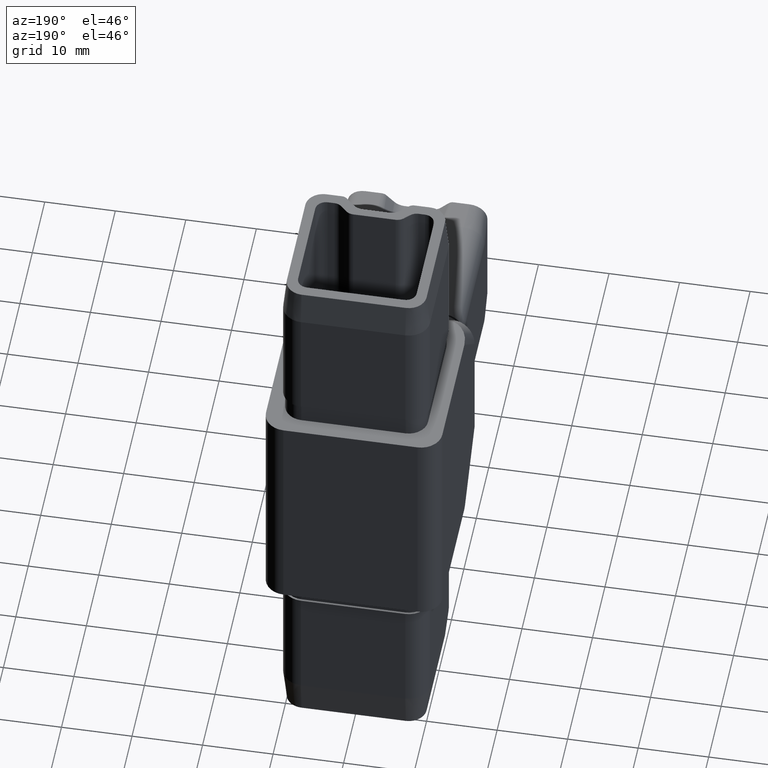
[diagram: clean part render]
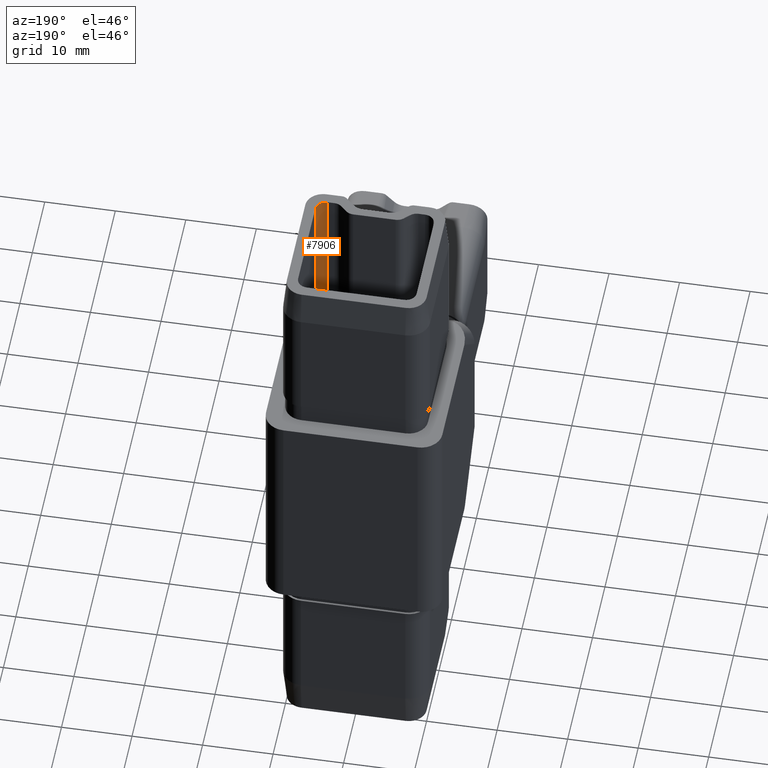
[diagram: same view with one face highlighted and labeled with its STEP entity id]
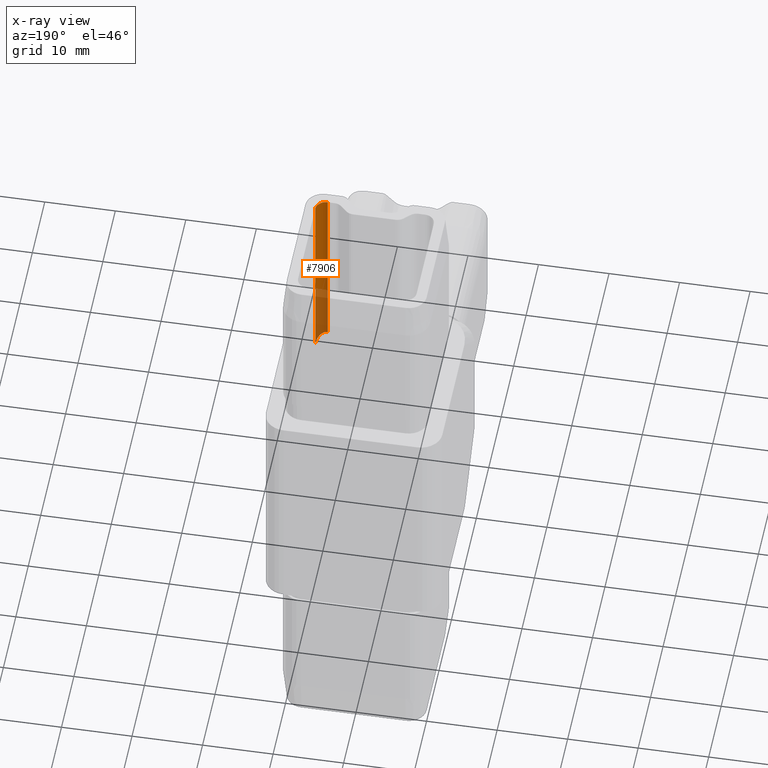
[diagram: x-ray of the same camera — body ghosted, the highlighted face saturated]
A machine part, auxiliary view. The second image highlights one B-rep face of the part: STEP entity #7906.
The next image is the same camera in x-ray: the body ghosted, the highlighted face saturated — about 35% of this face is hidden behind the body in this view.
In plain terms, the highlighted cylindrical surface (edge-blend (fillet) strip) has radius 1.5 mm, axis along (0, 0, -1).
Its self-contained STEP definition (entity closure, byte-faithful):
#42 = CARTESIAN_POINT ( 'NONE',  ( 6.900000000000000400, -6.399999999999988800, 15.42304473782996200 ) ) ;
#960 = DIRECTION ( 'NONE',  ( 1.000000000000000000, 0.0000000000000000000, 0.0000000000000000000 ) ) ;
#1199 = FACE_OUTER_BOUND ( 'NONE', #3055, .T. ) ;
#1207 = EDGE_CURVE ( 'NONE', #15559, #6300, #14901, .T. ) ;
#1227 = EDGE_CURVE ( 'NONE', #15559, #4066, #8203, .T. ) ;
#1689 = CARTESIAN_POINT ( 'NONE',  ( 8.400000000000000400, -4.899999999999989700, 41.50000000000000000 ) ) ;
#1830 = AXIS2_PLACEMENT_3D ( 'NONE', #13330, #16577, #19368 ) ;
#2387 = CARTESIAN_POINT ( 'NONE',  ( 6.900000000000000400, -6.399999999999988800, 41.50000000000000000 ) ) ;
#2860 = EDGE_CURVE ( 'NONE', #4066, #12033, #17517, .T. ) ;
#3055 = EDGE_LOOP ( 'NONE', ( #17964, #12889, #12207, #3698 ) ) ;
#3698 = ORIENTED_EDGE ( 'NONE', *, *, #2860, .F. ) ;
#4066 = VERTEX_POINT ( 'NONE', #1689 ) ;
#5480 = CARTESIAN_POINT ( 'NONE',  ( 6.900000000000000400, -6.399999999999988800, 41.50000000000000000 ) ) ;
#5674 = DIRECTION ( 'NONE',  ( 0.0000000000000000000, -0.0000000000000000000, -1.000000000000000000 ) ) ;
#6000 = LINE ( 'NONE', #2387, #6261 ) ;
#6261 = VECTOR ( 'NONE', #12953, 1000.000000000000000 ) ;
#6300 = VERTEX_POINT ( 'NONE', #6957 ) ;
#6688 = CYLINDRICAL_SURFACE ( 'NONE', #1830, 1.500000000000000400 ) ;
#6957 = CARTESIAN_POINT ( 'NONE',  ( 6.900000000000000400, -6.399999999999988800, 15.42304473782996200 ) ) ;
#7817 = CARTESIAN_POINT ( 'NONE',  ( 8.400000000000000400, -4.899999999999989700, 14.18040405071068500 ) ) ;
#7906 = ADVANCED_FACE ( 'NONE', ( #1199 ), #6688, .F. ) ;
#8203 = LINE ( 'NONE', #18115, #8644 ) ;
#8644 = VECTOR ( 'NONE', #19654, 1000.000000000000000 ) ;
#9976 = CARTESIAN_POINT ( 'NONE',  ( 6.900000000000000400, -4.899999999999989700, 41.50000000000000000 ) ) ;
#10636 = CARTESIAN_POINT ( 'NONE',  ( 8.399999999999998600, -5.778679656440347800, 14.90832611206853100 ) ) ;
#10910 = CARTESIAN_POINT ( 'NONE',  ( 7.778679656440355700, -6.399999999999987900, 15.42304473782995400 ) ) ;
#12033 = VERTEX_POINT ( 'NONE', #5480 ) ;
#12207 = ORIENTED_EDGE ( 'NONE', *, *, #17667, .F. ) ;
#12291 = AXIS2_PLACEMENT_3D ( 'NONE', #9976, #5674, #960 ) ;
#12889 = ORIENTED_EDGE ( 'NONE', *, *, #1207, .T. ) ;
#12953 = DIRECTION ( 'NONE',  ( 0.0000000000000000000, 0.0000000000000000000, -1.000000000000000000 ) ) ;
#13330 = CARTESIAN_POINT ( 'NONE',  ( 6.900000000000000400, -4.899999999999989700, 41.50000000000000000 ) ) ;
#14901 =( BOUNDED_CURVE ( )  B_SPLINE_CURVE ( 3, ( #7817, #10636, #10910, #42 ),
 .UNSPECIFIED., .F., .F. ) 
 B_SPLINE_CURVE_WITH_KNOTS ( ( 4, 4 ),
 ( 4.712388980384692300, 6.283185307179586200 ),
 .UNSPECIFIED. ) 
 CURVE ( )  GEOMETRIC_REPRESENTATION_ITEM ( )  RATIONAL_B_SPLINE_CURVE ( ( 1.000000000000000000, 0.8047378541243654900, 0.8047378541243654900, 1.000000000000000000 ) ) 
 REPRESENTATION_ITEM ( '' )  );
#15559 = VERTEX_POINT ( 'NONE', #19508 ) ;
#16577 = DIRECTION ( 'NONE',  ( 0.0000000000000000000, 0.0000000000000000000, -1.000000000000000000 ) ) ;
#17517 = CIRCLE ( 'NONE', #12291, 1.500000000000000400 ) ;
#17667 = EDGE_CURVE ( 'NONE', #12033, #6300, #6000, .T. ) ;
#17964 = ORIENTED_EDGE ( 'NONE', *, *, #1227, .F. ) ;
#18115 = CARTESIAN_POINT ( 'NONE',  ( 8.400000000000000400, -4.899999999999987900, 16.50000000000000000 ) ) ;
#19368 = DIRECTION ( 'NONE',  ( -1.000000000000000000, 0.0000000000000000000, 0.0000000000000000000 ) ) ;
#19508 = CARTESIAN_POINT ( 'NONE',  ( 8.400000000000000400, -4.899999999999989700, 14.18040405071068500 ) ) ;
#19654 = DIRECTION ( 'NONE',  ( -0.0000000000000000000, -0.0000000000000000000, 1.000000000000000000 ) ) ;